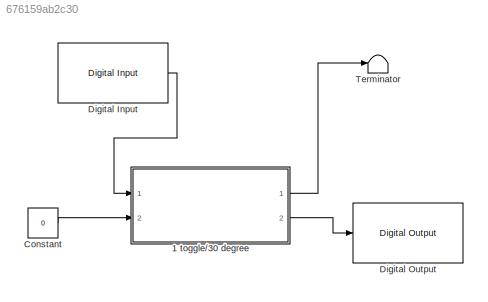
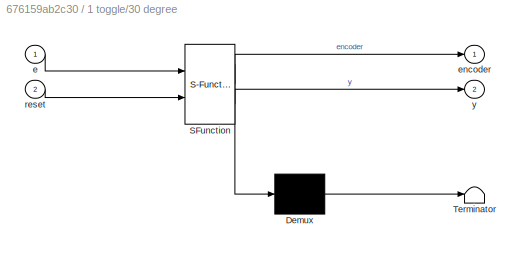
MODEL slx_676159ab2c30
KIND model
BLOCK [SubSystem] 1 toggle//30 degree
  ErrorFcn = Stateflow.Translate.translate
  PermitHierarchicalResolution = ExplicitOnly
  Ports = [2, 2]
  RequestExecContextInheritance = off
  SFBlockType = Chart
  TreatAsAtomicUnit = on
BLOCK [Demux] 1 toggle//30 degree/ Demux 
  Outputs = 1
  Ports = [1, 1]
BLOCK [S-Function] 1 toggle//30 degree/ SFunction 
  EnableBusSupport = on
  FunctionName = sf_sfun
  PortCounts = [2 3]
  Ports = [2, 3]
  Tag = Stateflow S-Function Encoder 1
BLOCK [Terminator] 1 toggle//30 degree/ Terminator 
BLOCK [Inport] 1 toggle//30 degree/e
  IconDisplay = Port number
BLOCK [Outport] 1 toggle//30 degree/encoder
  IconDisplay = Port number
BLOCK [Inport] 1 toggle//30 degree/reset
  IconDisplay = Port number
  Port = 2
BLOCK [Outport] 1 toggle//30 degree/y
  IconDisplay = Port number
  Port = 2
BLOCK [Constant] Constant
  Value = 0
BLOCK [Reference] Digital Input  REF=c2833xlib/Digital Input
  GPIO_Bit0 = off
  GPIO_Bit0_Qualification = Sync to SYSCLKOUT
  GPIO_Bit1 = off
  GPIO_Bit1_Qualification = Sync to SYSCLKOUT
  GPIO_Bit2 = off
  GPIO_Bit2_Qualification = Sync to SYSCLKOUT
  GPIO_Bit3 = off
  GPIO_Bit3_Qualification = Sync to SYSCLKOUT
  GPIO_Bit4 = on
  GPIO_Bit4_Qualification = Sync to SYSCLKOUT
  GPIO_Bit5 = off
  GPIO_Bit5_Qualification = Sync to SYSCLKOUT
  GPIO_Bit6 = off
  GPIO_Bit6_Qualification = Sync to SYSCLKOUT
  GPIO_Bit7 = off
  GPIO_Bit7_Qualification = Sync to SYSCLKOUT
  GPIO_Number = GPIO8~GPIO15
  Ports = [0, 1]
  Qualification_Period = -1
  SourceBlock = c2833xlib/Digital Input
  SourceType = C2833x GPIO Digital Input
  UserDataPersistent = on
  dataType = auto
  sampleTime = 0.001
BLOCK [Reference] Digital Output  REF=c2833xlib/Digital Output
  GPIO_BIT0_Toggle = off
  GPIO_BIT1_Toggle = off
  GPIO_BIT2_Toggle = off
  GPIO_BIT3_Toggle = off
  GPIO_BIT4_Toggle = off
  GPIO_BIT5_Toggle = off
  GPIO_BIT6_Toggle = off
  GPIO_BIT7_Toggle = off
  GPIO_Bit0 = off
  GPIO_Bit1 = off
  GPIO_Bit2 = on
  GPIO_Bit3 = off
  GPIO_Bit4 = off
  GPIO_Bit5 = off
  GPIO_Bit6 = off
  GPIO_Bit7 = off
  GPIO_Number = GPIO32~GPIO39
  Ports = [1]
  SourceBlock = c2833xlib/Digital Output
  SourceType = C2833x GPIO Digital Output
  UserDataPersistent = on
BLOCK [Terminator] Terminator
LINE 1 toggle//30 degree:1 -> Terminator:1
LINE 1 toggle//30 degree:2 -> Digital Output:1
LINE Constant:1 -> 1 toggle//30 degree:2
LINE Digital Input:1 -> 1 toggle//30 degree:1
CHART 1 toggle//30 degree states=4 transitions=7
  STATE_LABEL 'Drehung\n\nentry: y=~y;\n counter = int16(0);\n'
  STATE_LABEL 'X0\n\nentry: encoder= int16(0);\n counter = int16(0);\n y=false;\n'
  STATE_LABEL 'Start\n\nentry: encoder = encoder + 1;\n counter = counter + 1;'
  STATE_LABEL 'Ende'
